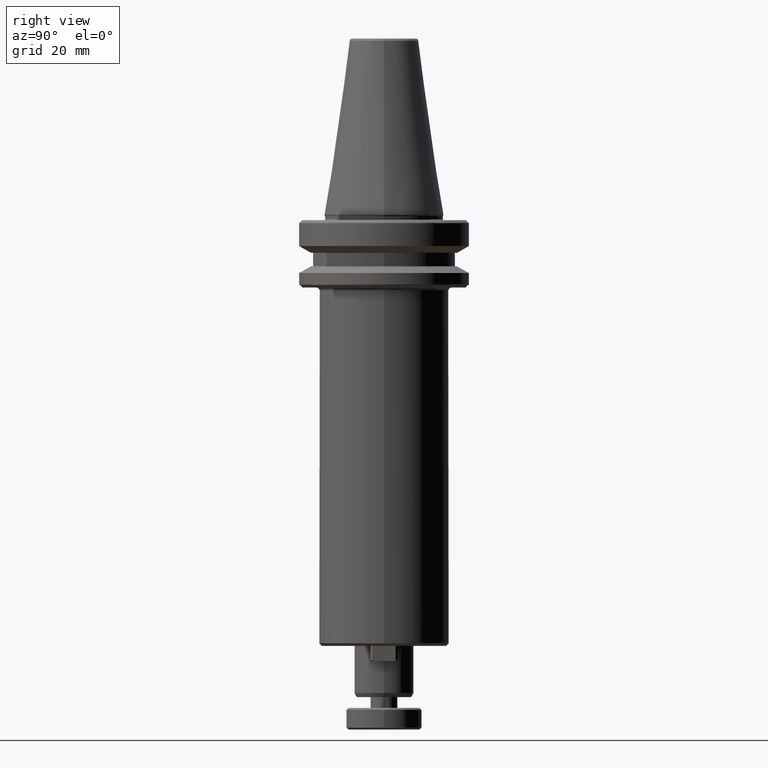
[diagram: clean part render]
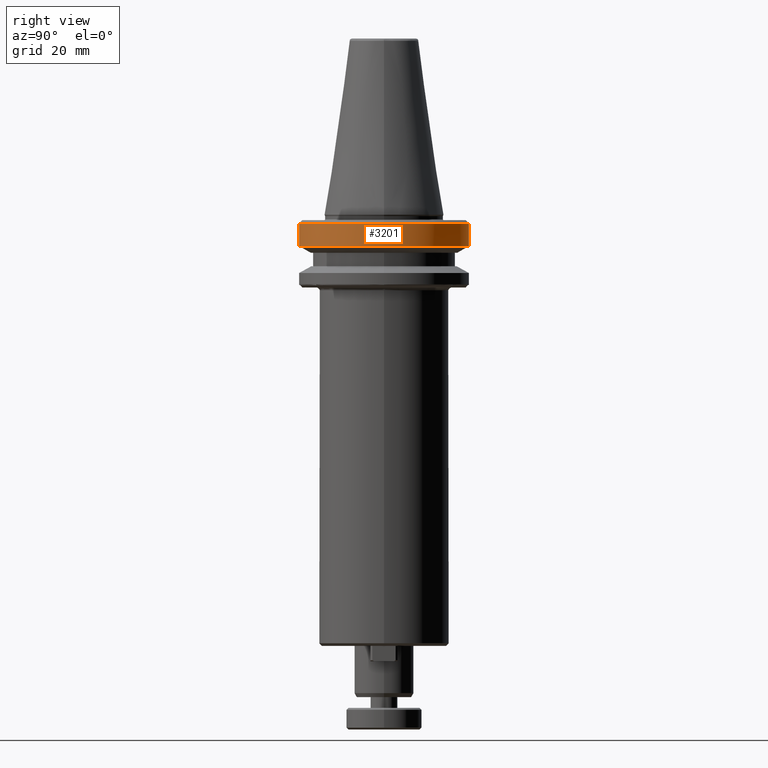
[diagram: same view with one face highlighted and labeled with its STEP entity id]
A machine part, right view. The second image highlights one B-rep face of the part: STEP entity #3201.
In plain terms, the highlighted cylindrical surface (partial cylindrical patch) has radius 31.5 mm, axis along (0, -0, 1).
Its self-contained STEP definition (entity closure, byte-faithful):
#125 = VERTEX_POINT ( 'NONE', #1668 ) ;
#203 = EDGE_CURVE ( 'NONE', #3565, #125, #1116, .T. ) ;
#263 = ORIENTED_EDGE ( 'NONE', *, *, #673, .F. ) ;
#299 = VERTEX_POINT ( 'NONE', #2197 ) ;
#389 = AXIS2_PLACEMENT_3D ( 'NONE', #1175, #1121, #1097 ) ;
#428 = VERTEX_POINT ( 'NONE', #2416 ) ;
#435 = EDGE_CURVE ( 'NONE', #3565, #2215, #941, .T. ) ;
#442 = DIRECTION ( 'NONE',  ( -0.0000000000000000000, -0.0000000000000000000, 1.000000000000000000 ) ) ;
#514 = CARTESIAN_POINT ( 'NONE',  ( 0.0000000000000000000, -31.50000000000000000, -3.165685424999995100 ) ) ;
#544 = DIRECTION ( 'NONE',  ( 1.000000000000000000, 0.0000000000000000000, 0.0000000000000000000 ) ) ;
#578 = CARTESIAN_POINT ( 'NONE',  ( 0.0000000000000000000, 0.0000000000000000000, -3.165685424999995100 ) ) ;
#614 = AXIS2_PLACEMENT_3D ( 'NONE', #951, #819, #836 ) ;
#616 = EDGE_CURVE ( 'NONE', #428, #2048, #823, .T. ) ;
#645 = EDGE_CURVE ( 'NONE', #2048, #2588, #794, .T. ) ;
#654 = EDGE_CURVE ( 'NONE', #125, #299, #792, .T. ) ;
#673 = EDGE_CURVE ( 'NONE', #2215, #428, #867, .T. ) ;
#677 = EDGE_CURVE ( 'NONE', #2588, #299, #827, .T. ) ;
#790 = VECTOR ( 'NONE', #1191, 1000.000000000000000 ) ;
#792 = LINE ( 'NONE', #1682, #790 ) ;
#794 = CIRCLE ( 'NONE', #389, 31.50000000000000000 ) ;
#819 = DIRECTION ( 'NONE',  ( -0.0000000000000000000, -0.0000000000000000000, 1.000000000000000000 ) ) ;
#823 = CIRCLE ( 'NONE', #1366, 31.50000000000000000 ) ;
#827 = CIRCLE ( 'NONE', #3813, 31.50000000000000000 ) ;
#836 = DIRECTION ( 'NONE',  ( 1.000000000000000000, 0.0000000000000000000, 0.0000000000000000000 ) ) ;
#867 = CIRCLE ( 'NONE', #614, 31.50000000000000000 ) ;
#906 = VECTOR ( 'NONE', #2472, 1000.000000000000000 ) ;
#941 = LINE ( 'NONE', #2494, #906 ) ;
#951 = CARTESIAN_POINT ( 'NONE',  ( 0.0000000000000000000, 0.0000000000000000000, -3.165685424999995100 ) ) ;
#1097 = DIRECTION ( 'NONE',  ( 1.000000000000000000, 0.0000000000000000000, -1.514441129821022100E-016 ) ) ;
#1116 = CIRCLE ( 'NONE', #2281, 31.50000000000000000 ) ;
#1121 = DIRECTION ( 'NONE',  ( 0.0000000000000000000, 0.0000000000000000000, 1.000000000000000000 ) ) ;
#1175 = CARTESIAN_POINT ( 'NONE',  ( 0.0000000000000000000, 0.0000000000000000000, -3.165685424999995100 ) ) ;
#1178 = CARTESIAN_POINT ( 'NONE',  ( 31.50000000000453000, -2.828499295505090300E-009, -3.165685425006475700 ) ) ;
#1191 = DIRECTION ( 'NONE',  ( 0.0000000000000000000, -2.753529326947312600E-017, 1.000000000000000000 ) ) ;
#1366 = AXIS2_PLACEMENT_3D ( 'NONE', #1683, #1608, #1728 ) ;
#1608 = DIRECTION ( 'NONE',  ( 0.0000000000000000000, 0.0000000000000000000, 1.000000000000000000 ) ) ;
#1611 = ORIENTED_EDGE ( 'NONE', *, *, #645, .F. ) ;
#1668 = CARTESIAN_POINT ( 'NONE',  ( 3.857637417314165800E-015, 31.50000000000002800, -11.59985799399998500 ) ) ;
#1682 = CARTESIAN_POINT ( 'NONE',  ( 3.857637417314162700E-015, 31.50000000000000000, -11.59985799400000100 ) ) ;
#1683 = CARTESIAN_POINT ( 'NONE',  ( 0.0000000000000000000, 0.0000000000000000000, -3.165685424999995100 ) ) ;
#1728 = DIRECTION ( 'NONE',  ( 1.000000000000000000, 0.0000000000000000000, -1.514441129821022100E-016 ) ) ;
#1759 = CARTESIAN_POINT ( 'NONE',  ( 0.0000000000000000000, 0.0000000000000000000, -11.59985799399998500 ) ) ;
#1766 = DIRECTION ( 'NONE',  ( 0.0000000000000000000, 0.0000000000000000000, 1.000000000000000000 ) ) ;
#1773 = DIRECTION ( 'NONE',  ( 1.000000000000000000, 0.0000000000000000000, -4.956352788505163300E-016 ) ) ;
#1910 = ORIENTED_EDGE ( 'NONE', *, *, #203, .T. ) ;
#2048 = VERTEX_POINT ( 'NONE', #1178 ) ;
#2197 = CARTESIAN_POINT ( 'NONE',  ( 3.857637417314162700E-015, 31.50000000000000000, -3.165685424999995100 ) ) ;
#2215 = VERTEX_POINT ( 'NONE', #514 ) ;
#2281 = AXIS2_PLACEMENT_3D ( 'NONE', #1759, #1766, #1773 ) ;
#2416 = CARTESIAN_POINT ( 'NONE',  ( 8.599437156288562500, -30.30345987828854200, -3.165685424999995100 ) ) ;
#2472 = DIRECTION ( 'NONE',  ( 0.0000000000000000000, -2.753529326947312600E-017, 1.000000000000000000 ) ) ;
#2494 = CARTESIAN_POINT ( 'NONE',  ( 0.0000000000000000000, -31.50000000000000000, -11.59985799400000100 ) ) ;
#2588 = VERTEX_POINT ( 'NONE', #2867 ) ;
#2772 = FACE_OUTER_BOUND ( 'NONE', #3135, .T. ) ;
#2788 = CYLINDRICAL_SURFACE ( 'NONE', #3212, 31.50000000000000000 ) ;
#2867 = CARTESIAN_POINT ( 'NONE',  ( 8.599437156288559000, 30.30345987828854600, -3.165685424999995100 ) ) ;
#2872 = CARTESIAN_POINT ( 'NONE',  ( 0.0000000000000000000, -31.50000000000002800, -11.59985799399998500 ) ) ;
#2928 = ORIENTED_EDGE ( 'NONE', *, *, #616, .F. ) ;
#3135 = EDGE_LOOP ( 'NONE', ( #1910, #3718, #3334, #1611, #2928, #263, #3747 ) ) ;
#3201 = ADVANCED_FACE ( 'NONE', ( #2772 ), #2788, .T. ) ;
#3212 = AXIS2_PLACEMENT_3D ( 'NONE', #3663, #3365, #3690 ) ;
#3334 = ORIENTED_EDGE ( 'NONE', *, *, #677, .F. ) ;
#3365 = DIRECTION ( 'NONE',  ( 0.0000000000000000000, -2.753529326947312600E-017, 1.000000000000000000 ) ) ;
#3565 = VERTEX_POINT ( 'NONE', #2872 ) ;
#3663 = CARTESIAN_POINT ( 'NONE',  ( 0.0000000000000000000, 0.0000000000000000000, -11.59985799400000100 ) ) ;
#3690 = DIRECTION ( 'NONE',  ( 0.0000000000000000000, -1.000000000000000000, 0.0000000000000000000 ) ) ;
#3718 = ORIENTED_EDGE ( 'NONE', *, *, #654, .T. ) ;
#3747 = ORIENTED_EDGE ( 'NONE', *, *, #435, .F. ) ;
#3813 = AXIS2_PLACEMENT_3D ( 'NONE', #578, #442, #544 ) ;